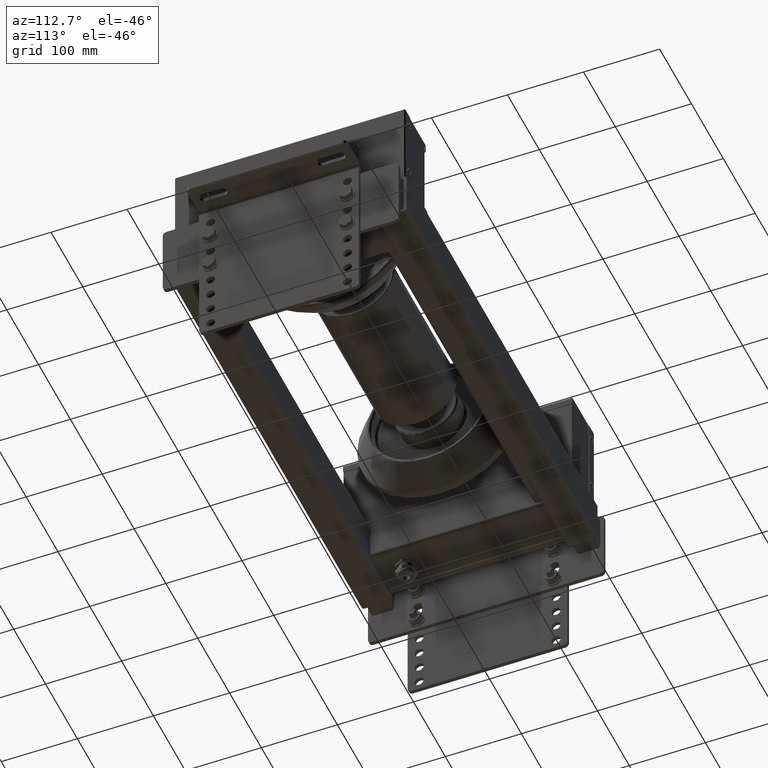
[diagram: clean part render]
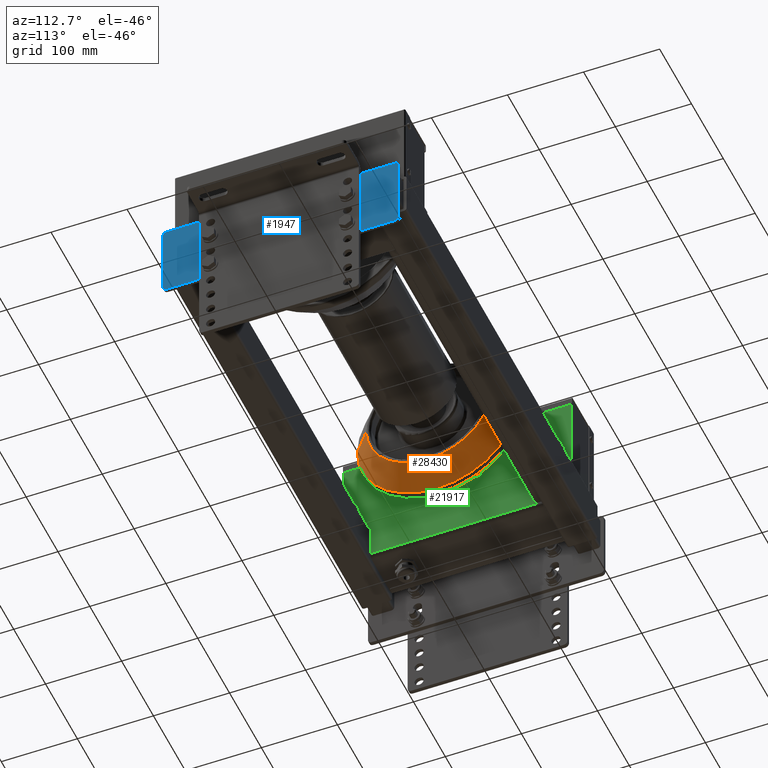
[diagram: same view with three faces highlighted in distinct colors, each labeled with its STEP entity id]
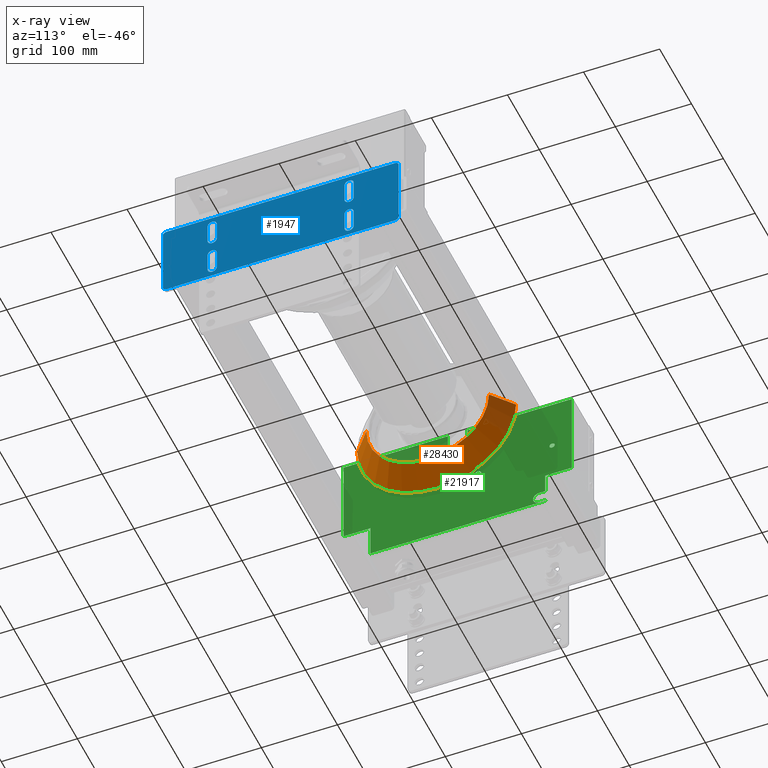
[diagram: x-ray of the same camera — body ghosted, the three highlighted faces saturated]
A machine part, auxiliary view with three faces highlighted in distinct colors.
The next image is the same camera in x-ray (body ghosted, the three faces saturated) — at least one of them is partly hidden behind the body in this view.
Their STEP definitions:

[orange] entity #28430 — the highlighted conical surface has half-angle 40 deg.
#28133=CARTESIAN_POINT('',(-19.285575219373122,-80.599473569927952,-9.870589E-015));
#28134=VERTEX_POINT('',#28133);
#28142=CARTESIAN_POINT('',(-19.285575219373115,-9.870589E-015,80.599473569927952));
#28143=VERTEX_POINT('',#28142);
#28144=CARTESIAN_POINT('',(-19.285575219373118,0.0,0.0));
#28145=DIRECTION('',(-1.0,0.0,0.0));
#28146=DIRECTION('',(0.0,-1.0,0.0));
#28147=AXIS2_PLACEMENT_3D('',#28144,#28145,#28146);
#28148=CIRCLE('',#28147,80.599473569927952);
#28149=EDGE_CURVE('',#28134,#28143,#28148,.T.);
#28228=CARTESIAN_POINT('',(9.096796376304386,104.415111107797440,0.0));
#28229=VERTEX_POINT('',#28228);
#28230=CARTESIAN_POINT('',(-19.285575219373118,80.599473569927952,0.0));
#28231=VERTEX_POINT('',#28230);
#28232=CARTESIAN_POINT('',(9.096796376304386,104.415111107797440,0.0));
#28233=DIRECTION('',(-0.766044443118978,-0.642787609686539,0.0));
#28234=VECTOR('',#28233,37.050554769534827);
#28235=LINE('',#28232,#28234);
#28236=EDGE_CURVE('',#28229,#28231,#28235,.T.);
#28247=CARTESIAN_POINT('',(9.096796376304390,-104.415111107797440,-1.278716E-014));
#28248=VERTEX_POINT('',#28247);
#28256=CARTESIAN_POINT('',(9.096796376304390,-104.415111107797440,-1.278716E-014));
#28257=DIRECTION('',(-0.766044443118978,0.642787609686539,7.871878E-017));
#28258=VECTOR('',#28257,37.050554769534827);
#28259=LINE('',#28256,#28258);
#28260=EDGE_CURVE('',#28248,#28134,#28259,.T.);
#28345=CARTESIAN_POINT('',(9.096796376304386,-1.278716E-014,104.415111107797440));
#28346=VERTEX_POINT('',#28345);
#28354=CARTESIAN_POINT('',(9.096796376304386,0.0,0.0));
#28355=DIRECTION('',(1.0,0.0,0.0));
#28356=DIRECTION('',(0.0,-1.0,0.0));
#28357=AXIS2_PLACEMENT_3D('',#28354,#28355,#28356);
#28358=CIRCLE('',#28357,104.415111107797440);
#28359=EDGE_CURVE('',#28346,#28248,#28358,.T.);
#28372=CARTESIAN_POINT('',(9.096796376304386,0.0,0.0));
#28373=DIRECTION('',(1.0,0.0,0.0));
#28374=DIRECTION('',(0.0,-1.0,0.0));
#28375=AXIS2_PLACEMENT_3D('',#28372,#28373,#28374);
#28376=CIRCLE('',#28375,104.415111107797440);
#28377=EDGE_CURVE('',#28229,#28346,#28376,.T.);
#28411=CARTESIAN_POINT('',(-5.103080092572398,0.0,0.0));
#28412=DIRECTION('',(1.0,0.0,0.0));
#28413=DIRECTION('',(0.0,1.0,0.0));
#28414=AXIS2_PLACEMENT_3D('',#28411,#28412,#28413);
#28415=CONICAL_SURFACE('',#28414,92.500000000000000,39.999999999999993);
#28416=ORIENTED_EDGE('',*,*,#28236,.T.);
#28417=CARTESIAN_POINT('',(-19.285575219373118,0.0,0.0));
#28418=DIRECTION('',(-1.0,0.0,0.0));
#28419=DIRECTION('',(0.0,-1.0,0.0));
#28420=AXIS2_PLACEMENT_3D('',#28417,#28418,#28419);
#28421=CIRCLE('',#28420,80.599473569927952);
#28422=EDGE_CURVE('',#28143,#28231,#28421,.T.);
#28423=ORIENTED_EDGE('',*,*,#28422,.F.);
#28424=ORIENTED_EDGE('',*,*,#28149,.F.);
#28425=ORIENTED_EDGE('',*,*,#28260,.F.);
#28426=ORIENTED_EDGE('',*,*,#28359,.F.);
#28427=ORIENTED_EDGE('',*,*,#28377,.F.);
#28428=EDGE_LOOP('',(#28416,#28423,#28424,#28425,#28426,#28427));
#28429=FACE_OUTER_BOUND('',#28428,.T.);
#28430=ADVANCED_FACE('',(#28429),#28415,.T.);

[blue] entity #1947 — the highlighted planar face has unit normal (1, -0, -0).
#1677=CARTESIAN_POINT('',(150.0,49.999999999999915,2.500000000000000));
#1678=VERTEX_POINT('',#1677);
#1679=CARTESIAN_POINT('',(155.0,45.0,2.500000000000000));
#1680=VERTEX_POINT('',#1679);
#1681=CARTESIAN_POINT('',(150.0,45.0,2.500000000000000));
#1682=DIRECTION('',(0.0,0.0,-1.000000000000000));
#1683=DIRECTION('',(0.707106781186547,0.707106781186547,0.0));
#1684=AXIS2_PLACEMENT_3D('',#1681,#1682,#1683);
#1685=CIRCLE('',#1684,4.999999999999999);
#1686=EDGE_CURVE('',#1678,#1680,#1685,.T.);
#1720=CARTESIAN_POINT('',(155.0,-44.999999999999886,2.500000000000000));
#1721=VERTEX_POINT('',#1720);
#1722=CARTESIAN_POINT('',(155.0,45.0,2.500000000000000));
#1723=DIRECTION('',(0.0,-1.0,0.0));
#1724=VECTOR('',#1723,89.999999999999886);
#1725=LINE('',#1722,#1724);
#1726=EDGE_CURVE('',#1680,#1721,#1725,.T.);
#1745=CARTESIAN_POINT('',(-2.273737E-013,0.0,2.500000000000000));
#1746=DIRECTION('',(0.0,0.0,1.0));
#1747=DIRECTION('',(1.0,0.0,0.0));
#1748=AXIS2_PLACEMENT_3D('',#1745,#1746,#1747);
#1749=PLANE('',#1748);
#1750=ORIENTED_EDGE('',*,*,#1686,.F.);
#1751=CARTESIAN_POINT('',(-150.000000000000060,49.999999999999858,2.500000000000000));
#1752=VERTEX_POINT('',#1751);
#1753=CARTESIAN_POINT('',(-150.000000000000060,49.999999999999858,2.500000000000000));
#1754=DIRECTION('',(1.0,0.0,0.0));
#1755=VECTOR('',#1754,300.000000000000060);
#1756=LINE('',#1753,#1755);
#1757=EDGE_CURVE('',#1752,#1678,#1756,.T.);
#1758=ORIENTED_EDGE('',*,*,#1757,.F.);
#1759=CARTESIAN_POINT('',(-155.000000000000030,44.999999999999943,2.500000000000000));
#1760=VERTEX_POINT('',#1759);
#1761=CARTESIAN_POINT('',(-150.000000000000060,44.999999999999943,2.500000000000000));
#1762=DIRECTION('',(0.0,0.0,-1.000000000000000));
#1763=DIRECTION('',(-0.707106781186547,0.707106781186547,0.0));
#1764=AXIS2_PLACEMENT_3D('',#1761,#1762,#1763);
#1765=CIRCLE('',#1764,4.999999999999999);
#1766=EDGE_CURVE('',#1760,#1752,#1765,.T.);
#1767=ORIENTED_EDGE('',*,*,#1766,.F.);
#1768=CARTESIAN_POINT('',(-154.999999999999970,-44.999999999999886,2.500000000000000));
#1769=VERTEX_POINT('',#1768);
#1770=CARTESIAN_POINT('',(-154.999999999999970,-44.999999999999886,2.500000000000000));
#1771=DIRECTION('',(0.0,1.0,0.0));
#1772=VECTOR('',#1771,89.999999999999829);
#1773=LINE('',#1770,#1772);
#1774=EDGE_CURVE('',#1769,#1760,#1773,.T.);
#1775=ORIENTED_EDGE('',*,*,#1774,.F.);
#1776=CARTESIAN_POINT('',(-150.0,-49.999999999999886,2.500000000000000));
#1777=VERTEX_POINT('',#1776);
#1778=CARTESIAN_POINT('',(-150.0,-44.999999999999886,2.500000000000000));
#1779=DIRECTION('',(0.0,0.0,-1.000000000000000));
#1780=DIRECTION('',(-0.707106781186547,-0.707106781186547,0.0));
#1781=AXIS2_PLACEMENT_3D('',#1778,#1779,#1780);
#1782=CIRCLE('',#1781,4.999999999999999);
#1783=EDGE_CURVE('',#1777,#1769,#1782,.T.);
#1784=ORIENTED_EDGE('',*,*,#1783,.F.);
#1785=CARTESIAN_POINT('',(150.0,-49.999999999999886,2.500000000000000));
#1786=VERTEX_POINT('',#1785);
#1787=CARTESIAN_POINT('',(150.0,-49.999999999999886,2.500000000000000));
#1788=DIRECTION('',(-1.0,0.0,0.0));
#1789=VECTOR('',#1788,300.0);
#1790=LINE('',#1787,#1789);
#1791=EDGE_CURVE('',#1786,#1777,#1790,.T.);
#1792=ORIENTED_EDGE('',*,*,#1791,.F.);
#1793=CARTESIAN_POINT('',(150.0,-44.999999999999886,2.500000000000000));
#1794=DIRECTION('',(0.0,0.0,-1.000000000000000));
#1795=DIRECTION('',(0.707106781186547,-0.707106781186547,0.0));
#1796=AXIS2_PLACEMENT_3D('',#1793,#1794,#1795);
#1797=CIRCLE('',#1796,4.999999999999999);
#1798=EDGE_CURVE('',#1721,#1786,#1797,.T.);
#1799=ORIENTED_EDGE('',*,*,#1798,.F.);
#1800=ORIENTED_EDGE('',*,*,#1726,.F.);
#1801=EDGE_LOOP('',(#1750,#1758,#1767,#1775,#1784,#1792,#1799,#1800));
#1802=FACE_OUTER_BOUND('',#1801,.T.);
#1803=CARTESIAN_POINT('',(-84.0,12.499999999999943,2.500000000000000));
#1804=VERTEX_POINT('',#1803);
#1805=CARTESIAN_POINT('',(-84.0,37.500000000000057,2.500000000000000));
#1806=VERTEX_POINT('',#1805);
#1807=CARTESIAN_POINT('',(-84.0,12.499999999999943,2.500000000000000));
#1808=DIRECTION('',(0.0,1.0,0.0));
#1809=VECTOR('',#1808,25.000000000000114);
#1810=LINE('',#1807,#1809);
#1811=EDGE_CURVE('',#1804,#1806,#1810,.T.);
#1812=ORIENTED_EDGE('',*,*,#1811,.F.);
#1813=CARTESIAN_POINT('',(-96.0,12.499999999999943,2.500000000000000));
#1814=VERTEX_POINT('',#1813);
#1815=CARTESIAN_POINT('',(-90.0,12.499999999999943,2.500000000000000));
#1816=DIRECTION('',(0.0,0.0,1.0));
#1817=DIRECTION('',(1.0,0.0,0.0));
#1818=AXIS2_PLACEMENT_3D('',#1815,#1816,#1817);
#1819=CIRCLE('',#1818,6.0);
#1820=EDGE_CURVE('',#1814,#1804,#1819,.T.);
#1821=ORIENTED_EDGE('',*,*,#1820,.F.);
#1822=CARTESIAN_POINT('',(-95.999999999999886,37.500000000000057,2.500000000000000));
#1823=VERTEX_POINT('',#1822);
#1824=CARTESIAN_POINT('',(-95.999999999999886,37.500000000000057,2.500000000000000));
#1825=DIRECTION('',(0.0,-1.0,0.0));
#1826=VECTOR('',#1825,25.000000000000114);
#1827=LINE('',#1824,#1826);
#1828=EDGE_CURVE('',#1823,#1814,#1827,.T.);
#1829=ORIENTED_EDGE('',*,*,#1828,.F.);
#1830=CARTESIAN_POINT('',(-90.0,37.500000000000057,2.500000000000000));
#1831=DIRECTION('',(0.0,0.0,1.0));
#1832=DIRECTION('',(1.0,0.0,0.0));
#1833=AXIS2_PLACEMENT_3D('',#1830,#1831,#1832);
#1834=CIRCLE('',#1833,6.0);
#1835=EDGE_CURVE('',#1806,#1823,#1834,.T.);
#1836=ORIENTED_EDGE('',*,*,#1835,.F.);
#1837=EDGE_LOOP('',(#1812,#1821,#1829,#1836));
#1838=FACE_BOUND('',#1837,.T.);
#1839=CARTESIAN_POINT('',(96.000000000000114,12.500000000000000,2.500000000000000));
#1840=VERTEX_POINT('',#1839);
#1841=CARTESIAN_POINT('',(96.000000000000114,37.499999999999943,2.500000000000000));
#1842=VERTEX_POINT('',#1841);
#1843=CARTESIAN_POINT('',(96.000000000000114,12.500000000000000,2.500000000000000));
#1844=DIRECTION('',(0.0,1.0,0.0));
#1845=VECTOR('',#1844,24.999999999999943);
#1846=LINE('',#1843,#1845);
#1847=EDGE_CURVE('',#1840,#1842,#1846,.T.);
#1848=ORIENTED_EDGE('',*,*,#1847,.F.);
#1849=CARTESIAN_POINT('',(84.000000000000114,12.500000000000000,2.500000000000000));
#1850=VERTEX_POINT('',#1849);
#1851=CARTESIAN_POINT('',(89.999999999999773,12.499999999999943,2.500000000000000));
#1852=DIRECTION('',(0.0,0.0,1.0));
#1853=DIRECTION('',(1.0,0.0,0.0));
#1854=AXIS2_PLACEMENT_3D('',#1851,#1852,#1853);
#1855=CIRCLE('',#1854,6.0);
#1856=EDGE_CURVE('',#1850,#1840,#1855,.T.);
#1857=ORIENTED_EDGE('',*,*,#1856,.F.);
#1858=CARTESIAN_POINT('',(84.000000000000114,37.499999999999943,2.500000000000000));
#1859=VERTEX_POINT('',#1858);
#1860=CARTESIAN_POINT('',(84.000000000000114,37.499999999999943,2.500000000000000));
#1861=DIRECTION('',(0.0,-1.0,0.0));
#1862=VECTOR('',#1861,24.999999999999943);
#1863=LINE('',#1860,#1862);
#1864=EDGE_CURVE('',#1859,#1850,#1863,.T.);
#1865=ORIENTED_EDGE('',*,*,#1864,.F.);
#1866=CARTESIAN_POINT('',(89.999999999999773,37.500000000000057,2.500000000000000));
#1867=DIRECTION('',(0.0,0.0,1.0));
#1868=DIRECTION('',(1.0,0.0,0.0));
#1869=AXIS2_PLACEMENT_3D('',#1866,#1867,#1868);
#1870=CIRCLE('',#1869,6.0);
#1871=EDGE_CURVE('',#1842,#1859,#1870,.T.);
#1872=ORIENTED_EDGE('',*,*,#1871,.F.);
#1873=EDGE_LOOP('',(#1848,#1857,#1865,#1872));
#1874=FACE_BOUND('',#1873,.T.);
#1875=CARTESIAN_POINT('',(96.000000000000114,-37.500000000000000,2.500000000000000));
#1876=VERTEX_POINT('',#1875);
#1877=CARTESIAN_POINT('',(96.000000000000114,-12.499999999999886,2.500000000000000));
#1878=VERTEX_POINT('',#1877);
#1879=CARTESIAN_POINT('',(96.000000000000114,-37.500000000000000,2.500000000000000));
#1880=DIRECTION('',(0.0,1.0,0.0));
#1881=VECTOR('',#1880,25.000000000000114);
#1882=LINE('',#1879,#1881);
#1883=EDGE_CURVE('',#1876,#1878,#1882,.T.);
#1884=ORIENTED_EDGE('',*,*,#1883,.F.);
#1885=CARTESIAN_POINT('',(83.999999999999886,-37.500000000000000,2.500000000000000));
#1886=VERTEX_POINT('',#1885);
#1887=CARTESIAN_POINT('',(90.0,-37.500000000000000,2.500000000000000));
#1888=DIRECTION('',(0.0,0.0,1.0));
#1889=DIRECTION('',(1.0,0.0,0.0));
#1890=AXIS2_PLACEMENT_3D('',#1887,#1888,#1889);
#1891=CIRCLE('',#1890,6.0);
#1892=EDGE_CURVE('',#1886,#1876,#1891,.T.);
#1893=ORIENTED_EDGE('',*,*,#1892,.F.);
#1894=CARTESIAN_POINT('',(84.0,-12.499999999999886,2.500000000000000));
#1895=VERTEX_POINT('',#1894);
#1896=CARTESIAN_POINT('',(84.0,-12.499999999999886,2.500000000000000));
#1897=DIRECTION('',(0.0,-1.0,0.0));
#1898=VECTOR('',#1897,25.000000000000114);
#1899=LINE('',#1896,#1898);
#1900=EDGE_CURVE('',#1895,#1886,#1899,.T.);
#1901=ORIENTED_EDGE('',*,*,#1900,.F.);
#1902=CARTESIAN_POINT('',(90.0,-12.499999999999886,2.500000000000000));
#1903=DIRECTION('',(0.0,0.0,1.0));
#1904=DIRECTION('',(1.0,0.0,0.0));
#1905=AXIS2_PLACEMENT_3D('',#1902,#1903,#1904);
#1906=CIRCLE('',#1905,6.0);
#1907=EDGE_CURVE('',#1878,#1895,#1906,.T.);
#1908=ORIENTED_EDGE('',*,*,#1907,.F.);
#1909=EDGE_LOOP('',(#1884,#1893,#1901,#1908));
#1910=FACE_BOUND('',#1909,.T.);
#1911=CARTESIAN_POINT('',(-84.0,-37.500000000000000,2.500000000000000));
#1912=VERTEX_POINT('',#1911);
#1913=CARTESIAN_POINT('',(-84.0,-12.500000000000057,2.500000000000000));
#1914=VERTEX_POINT('',#1913);
#1915=CARTESIAN_POINT('',(-84.0,-37.500000000000000,2.500000000000000));
#1916=DIRECTION('',(0.0,1.0,0.0));
#1917=VECTOR('',#1916,24.999999999999943);
#1918=LINE('',#1915,#1917);
#1919=EDGE_CURVE('',#1912,#1914,#1918,.T.);
#1920=ORIENTED_EDGE('',*,*,#1919,.F.);
#1921=CARTESIAN_POINT('',(-96.0,-37.500000000000000,2.500000000000000));
#1922=VERTEX_POINT('',#1921);
#1923=CARTESIAN_POINT('',(-90.0,-37.500000000000057,2.500000000000000));
#1924=DIRECTION('',(0.0,0.0,1.0));
#1925=DIRECTION('',(1.0,0.0,0.0));
#1926=AXIS2_PLACEMENT_3D('',#1923,#1924,#1925);
#1927=CIRCLE('',#1926,6.0);
#1928=EDGE_CURVE('',#1922,#1912,#1927,.T.);
#1929=ORIENTED_EDGE('',*,*,#1928,.F.);
#1930=CARTESIAN_POINT('',(-96.0,-12.500000000000057,2.500000000000000));
#1931=VERTEX_POINT('',#1930);
#1932=CARTESIAN_POINT('',(-96.0,-12.500000000000057,2.500000000000000));
#1933=DIRECTION('',(0.0,-1.0,0.0));
#1934=VECTOR('',#1933,24.999999999999943);
#1935=LINE('',#1932,#1934);
#1936=EDGE_CURVE('',#1931,#1922,#1935,.T.);
#1937=ORIENTED_EDGE('',*,*,#1936,.F.);
#1938=CARTESIAN_POINT('',(-90.0,-12.499999999999943,2.500000000000000));
#1939=DIRECTION('',(0.0,0.0,1.0));
#1940=DIRECTION('',(1.0,0.0,0.0));
#1941=AXIS2_PLACEMENT_3D('',#1938,#1939,#1940);
#1942=CIRCLE('',#1941,6.0);
#1943=EDGE_CURVE('',#1914,#1931,#1942,.T.);
#1944=ORIENTED_EDGE('',*,*,#1943,.F.);
#1945=EDGE_LOOP('',(#1920,#1929,#1937,#1944));
#1946=FACE_BOUND('',#1945,.T.);
#1947=ADVANCED_FACE('',(#1802,#1838,#1874,#1910,#1946),#1749,.T.);

[green] entity #21917 — the highlighted planar face has unit normal (-1, -0, 0).
#20600=CARTESIAN_POINT('',(-22.141504294496144,3.483495705504765,-1.500000000000000));
#20601=VERTEX_POINT('',#20600);
#20617=CARTESIAN_POINT('',(-30.891504294496144,3.483495705504765,-1.500000000000000));
#20618=VERTEX_POINT('',#20617);
#20625=CARTESIAN_POINT('',(-26.516504294496144,3.483495705504765,-1.500000000000000));
#20626=DIRECTION('',(0.0,0.0,-1.0));
#20627=DIRECTION('',(1.0,0.0,0.0));
#20628=AXIS2_PLACEMENT_3D('',#20625,#20626,#20627);
#20629=CIRCLE('',#20628,4.375000000000000);
#20630=EDGE_CURVE('',#20618,#20601,#20629,.T.);
#20642=CARTESIAN_POINT('',(30.891504294494780,3.483495705504765,-1.500000000000000));
#20643=VERTEX_POINT('',#20642);
#20659=CARTESIAN_POINT('',(22.141504294494780,3.483495705504765,-1.500000000000000));
#20660=VERTEX_POINT('',#20659);
#20667=CARTESIAN_POINT('',(26.516504294494780,3.483495705504765,-1.500000000000000));
#20668=DIRECTION('',(0.0,0.0,-1.0));
#20669=DIRECTION('',(1.0,0.0,0.0));
#20670=AXIS2_PLACEMENT_3D('',#20667,#20668,#20669);
#20671=CIRCLE('',#20670,4.375000000000000);
#20672=EDGE_CURVE('',#20660,#20643,#20671,.T.);
#20684=CARTESIAN_POINT('',(30.891504294494780,56.516504294495917,-1.500000000000000));
#20685=VERTEX_POINT('',#20684);
#20701=CARTESIAN_POINT('',(22.141504294494780,56.516504294495917,-1.500000000000000));
#20702=VERTEX_POINT('',#20701);
#20709=CARTESIAN_POINT('',(26.516504294494780,56.516504294495917,-1.500000000000000));
#20710=DIRECTION('',(0.0,0.0,-1.0));
#20711=DIRECTION('',(1.0,0.0,0.0));
#20712=AXIS2_PLACEMENT_3D('',#20709,#20710,#20711);
#20713=CIRCLE('',#20712,4.375000000000000);
#20714=EDGE_CURVE('',#20702,#20685,#20713,.T.);
#20726=CARTESIAN_POINT('',(-22.141504294496372,56.516504294495917,-1.500000000000000));
#20727=VERTEX_POINT('',#20726);
#20743=CARTESIAN_POINT('',(-30.891504294496372,56.516504294495917,-1.500000000000000));
#20744=VERTEX_POINT('',#20743);
#20751=CARTESIAN_POINT('',(-26.516504294496372,56.516504294495917,-1.500000000000000));
#20752=DIRECTION('',(0.0,0.0,-1.0));
#20753=DIRECTION('',(1.0,0.0,0.0));
#20754=AXIS2_PLACEMENT_3D('',#20751,#20752,#20753);
#20755=CIRCLE('',#20754,4.375000000000000);
#20756=EDGE_CURVE('',#20744,#20727,#20755,.T.);
#20850=CARTESIAN_POINT('',(-57.550000000000907,66.000000000000227,-1.500000000000000));
#20851=VERTEX_POINT('',#20850);
#20860=CARTESIAN_POINT('',(-64.450000000000912,66.000000000000227,-1.500000000000000));
#20861=VERTEX_POINT('',#20860);
#20862=CARTESIAN_POINT('',(-61.000000000000909,66.000000000000227,-1.500000000000000));
#20863=DIRECTION('',(0.0,0.0,1.0));
#20864=DIRECTION('',(1.0,0.0,0.0));
#20865=AXIS2_PLACEMENT_3D('',#20862,#20863,#20864);
#20866=CIRCLE('',#20865,3.450000000000000);
#20867=EDGE_CURVE('',#20861,#20851,#20866,.T.);
#20892=CARTESIAN_POINT('',(-120.550000000000910,14.000000000000227,-1.500000000000000));
#20893=VERTEX_POINT('',#20892);
#20902=CARTESIAN_POINT('',(-127.450000000000910,14.000000000000227,-1.500000000000000));
#20903=VERTEX_POINT('',#20902);
#20904=CARTESIAN_POINT('',(-124.000000000000910,14.000000000000227,-1.500000000000000));
#20905=DIRECTION('',(0.0,0.0,1.0));
#20906=DIRECTION('',(1.0,0.0,0.0));
#20907=AXIS2_PLACEMENT_3D('',#20904,#20905,#20906);
#20908=CIRCLE('',#20907,3.450000000000000);
#20909=EDGE_CURVE('',#20903,#20893,#20908,.T.);
#21104=CARTESIAN_POINT('',(-115.000000000001360,-78.999999999999773,-1.500000000000000));
#21105=VERTEX_POINT('',#21104);
#21113=CARTESIAN_POINT('',(115.0,-78.999999999999773,-1.500000000000000));
#21114=VERTEX_POINT('',#21113);
#21115=CARTESIAN_POINT('',(-115.000000000001360,-78.999999999999773,-1.500000000000000));
#21116=DIRECTION('',(1.0,0.0,0.0));
#21117=VECTOR('',#21116,230.000000000001360);
#21118=LINE('',#21115,#21117);
#21119=EDGE_CURVE('',#21105,#21114,#21118,.T.);
#21186=CARTESIAN_POINT('',(114.999999999999090,-34.999999999999773,-1.500000000000000));
#21187=VERTEX_POINT('',#21186);
#21188=CARTESIAN_POINT('',(114.999999999999090,-34.999999999999773,-1.500000000000000));
#21189=DIRECTION('',(0.0,-1.0,0.0));
#21190=VECTOR('',#21189,44.0);
#21191=LINE('',#21188,#21190);
#21192=EDGE_CURVE('',#21187,#21114,#21191,.T.);
#21401=CARTESIAN_POINT('',(-124.000000000000910,14.000000000000227,-1.500000000000000));
#21402=DIRECTION('',(0.0,0.0,1.0));
#21403=DIRECTION('',(1.0,0.0,0.0));
#21404=AXIS2_PLACEMENT_3D('',#21401,#21402,#21403);
#21405=CIRCLE('',#21404,3.450000000000000);
#21406=EDGE_CURVE('',#20893,#20903,#21405,.T.);
#21425=CARTESIAN_POINT('',(-61.000000000000909,66.000000000000227,-1.500000000000000));
#21426=DIRECTION('',(0.0,0.0,1.0));
#21427=DIRECTION('',(1.0,0.0,0.0));
#21428=AXIS2_PLACEMENT_3D('',#21425,#21426,#21427);
#21429=CIRCLE('',#21428,3.450000000000000);
#21430=EDGE_CURVE('',#20851,#20861,#21429,.T.);
#21667=CARTESIAN_POINT('',(12.999999999999091,85.000000000000455,-1.500000000000000));
#21668=VERTEX_POINT('',#21667);
#21669=CARTESIAN_POINT('',(149.999999999999090,85.000000000000227,-1.500000000000000));
#21670=VERTEX_POINT('',#21669);
#21671=CARTESIAN_POINT('',(12.999999999999091,85.000000000000455,-1.500000000000000));
#21672=DIRECTION('',(1.0,0.0,0.0));
#21673=VECTOR('',#21672,137.0);
#21674=LINE('',#21671,#21673);
#21675=EDGE_CURVE('',#21668,#21670,#21674,.T.);
#21714=CARTESIAN_POINT('',(149.999999999999090,-34.999999999999773,-1.500000000000000));
#21715=VERTEX_POINT('',#21714);
#21716=CARTESIAN_POINT('',(149.999999999999090,-34.999999999999773,-1.500000000000000));
#21717=DIRECTION('',(-1.0,0.0,0.0));
#21718=VECTOR('',#21717,35.0);
#21719=LINE('',#21716,#21718);
#21720=EDGE_CURVE('',#21715,#21187,#21719,.T.);
#21746=CARTESIAN_POINT('',(-13.000000000000682,85.000000000000227,-1.500000000000000));
#21747=VERTEX_POINT('',#21746);
#21754=CARTESIAN_POINT('',(-150.000000000000910,85.000000000000227,-1.500000000000000));
#21755=VERTEX_POINT('',#21754);
#21756=CARTESIAN_POINT('',(-150.000000000000910,85.000000000000227,-1.500000000000000));
#21757=DIRECTION('',(1.0,0.0,0.0));
#21758=VECTOR('',#21757,137.000000000000230);
#21759=LINE('',#21756,#21758);
#21760=EDGE_CURVE('',#21755,#21747,#21759,.T.);
#21773=CARTESIAN_POINT('',(-1.774273069271612,-15.615440189898896,-1.500000000000000));
#21774=DIRECTION('',(0.0,0.0,1.0));
#21775=DIRECTION('',(1.0,0.0,0.0));
#21776=AXIS2_PLACEMENT_3D('',#21773,#21774,#21775);
#21777=PLANE('',#21776);
#21778=ORIENTED_EDGE('',*,*,#21119,.F.);
#21779=CARTESIAN_POINT('',(-115.000000000000910,-77.999999999999773,-1.500000000000000));
#21780=VERTEX_POINT('',#21779);
#21781=CARTESIAN_POINT('',(-115.000000000001360,-78.999999999999773,-1.500000000000000));
#21782=DIRECTION('',(4.547474E-013,1.0,0.0));
#21783=VECTOR('',#21782,1.0);
#21784=LINE('',#21781,#21783);
#21785=EDGE_CURVE('',#21105,#21780,#21784,.T.);
#21786=ORIENTED_EDGE('',*,*,#21785,.T.);
#21787=CARTESIAN_POINT('',(-107.000000000000910,-77.999999999999773,-1.500000000000000));
#21788=VERTEX_POINT('',#21787);
#21789=CARTESIAN_POINT('',(-115.000000000000910,-77.999999999999773,-1.500000000000000));
#21790=DIRECTION('',(1.0,0.0,0.0));
#21791=VECTOR('',#21790,8.0);
#21792=LINE('',#21789,#21791);
#21793=EDGE_CURVE('',#21780,#21788,#21792,.T.);
#21794=ORIENTED_EDGE('',*,*,#21793,.T.);
#21795=CARTESIAN_POINT('',(-107.000000000000910,-61.999999999999773,-1.500000000000000));
#21796=VERTEX_POINT('',#21795);
#21797=CARTESIAN_POINT('',(-107.000000000000910,-69.999999999999773,-1.500000000000000));
#21798=DIRECTION('',(0.0,0.0,1.0));
#21799=DIRECTION('',(1.0,0.0,0.0));
#21800=AXIS2_PLACEMENT_3D('',#21797,#21798,#21799);
#21801=CIRCLE('',#21800,8.0);
#21802=EDGE_CURVE('',#21788,#21796,#21801,.T.);
#21803=ORIENTED_EDGE('',*,*,#21802,.T.);
#21804=CARTESIAN_POINT('',(-115.000000000000910,-61.999999999999773,-1.500000000000000));
#21805=VERTEX_POINT('',#21804);
#21806=CARTESIAN_POINT('',(-107.000000000000910,-61.999999999999773,-1.500000000000000));
#21807=DIRECTION('',(-1.0,0.0,0.0));
#21808=VECTOR('',#21807,8.0);
#21809=LINE('',#21806,#21808);
#21810=EDGE_CURVE('',#21796,#21805,#21809,.T.);
#21811=ORIENTED_EDGE('',*,*,#21810,.T.);
#21812=CARTESIAN_POINT('',(-115.000000000000910,-34.999999999999773,-1.500000000000000));
#21813=VERTEX_POINT('',#21812);
#21814=CARTESIAN_POINT('',(-115.000000000000910,-61.999999999999773,-1.500000000000000));
#21815=DIRECTION('',(0.0,1.0,0.0));
#21816=VECTOR('',#21815,27.0);
#21817=LINE('',#21814,#21816);
#21818=EDGE_CURVE('',#21805,#21813,#21817,.T.);
#21819=ORIENTED_EDGE('',*,*,#21818,.T.);
#21820=CARTESIAN_POINT('',(-150.000000000000910,-34.999999999999773,-1.500000000000000));
#21821=VERTEX_POINT('',#21820);
#21822=CARTESIAN_POINT('',(-115.000000000000910,-34.999999999999773,-1.500000000000000));
#21823=DIRECTION('',(-1.0,0.0,0.0));
#21824=VECTOR('',#21823,35.0);
#21825=LINE('',#21822,#21824);
#21826=EDGE_CURVE('',#21813,#21821,#21825,.T.);
#21827=ORIENTED_EDGE('',*,*,#21826,.T.);
#21828=CARTESIAN_POINT('',(-150.000000000000910,-34.999999999999773,-1.500000000000000));
#21829=DIRECTION('',(0.0,1.0,0.0));
#21830=VECTOR('',#21829,120.0);
#21831=LINE('',#21828,#21830);
#21832=EDGE_CURVE('',#21821,#21755,#21831,.T.);
#21833=ORIENTED_EDGE('',*,*,#21832,.T.);
#21834=ORIENTED_EDGE('',*,*,#21760,.T.);
#21835=CARTESIAN_POINT('',(-13.000000000001137,57.590759322643180,-1.500000000000000));
#21836=VERTEX_POINT('',#21835);
#21837=CARTESIAN_POINT('',(-13.000000000000682,85.000000000000227,-1.500000000000000));
#21838=DIRECTION('',(0.0,-1.0,0.0));
#21839=VECTOR('',#21838,27.409240677357047);
#21840=LINE('',#21837,#21839);
#21841=EDGE_CURVE('',#21747,#21836,#21840,.T.);
#21842=ORIENTED_EDGE('',*,*,#21841,.T.);
#21843=CARTESIAN_POINT('',(12.999999999999091,57.590759322643180,-1.500000000000000));
#21844=VERTEX_POINT('',#21843);
#21845=CARTESIAN_POINT('',(1.818989E-012,29.999999999996817,-1.500000000000000));
#21846=DIRECTION('',(0.0,0.0,1.0));
#21847=DIRECTION('',(1.0,0.0,0.0));
#21848=AXIS2_PLACEMENT_3D('',#21845,#21846,#21847);
#21849=CIRCLE('',#21848,30.500000000000000);
#21850=EDGE_CURVE('',#21836,#21844,#21849,.T.);
#21851=ORIENTED_EDGE('',*,*,#21850,.T.);
#21852=CARTESIAN_POINT('',(12.999999999999091,57.590759322643180,-1.500000000000000));
#21853=DIRECTION('',(0.0,1.0,0.0));
#21854=VECTOR('',#21853,27.409240677357275);
#21855=LINE('',#21852,#21854);
#21856=EDGE_CURVE('',#21844,#21668,#21855,.T.);
#21857=ORIENTED_EDGE('',*,*,#21856,.T.);
#21858=ORIENTED_EDGE('',*,*,#21675,.T.);
#21859=CARTESIAN_POINT('',(149.999999999999090,85.000000000000227,-1.500000000000000));
#21860=DIRECTION('',(0.0,-1.0,0.0));
#21861=VECTOR('',#21860,120.0);
#21862=LINE('',#21859,#21861);
#21863=EDGE_CURVE('',#21670,#21715,#21862,.T.);
#21864=ORIENTED_EDGE('',*,*,#21863,.T.);
#21865=ORIENTED_EDGE('',*,*,#21720,.T.);
#21866=ORIENTED_EDGE('',*,*,#21192,.T.);
#21867=EDGE_LOOP('',(#21778,#21786,#21794,#21803,#21811,#21819,#21827,#21833,#21834,#21842,#21851,#21857,#21858,#21864,#21865,#21866));
#21868=FACE_OUTER_BOUND('',#21867,.T.);
#21869=ORIENTED_EDGE('',*,*,#21406,.T.);
#21870=ORIENTED_EDGE('',*,*,#20909,.T.);
#21871=EDGE_LOOP('',(#21869,#21870));
#21872=FACE_BOUND('',#21871,.T.);
#21873=ORIENTED_EDGE('',*,*,#21430,.T.);
#21874=ORIENTED_EDGE('',*,*,#20867,.T.);
#21875=EDGE_LOOP('',(#21873,#21874));
#21876=FACE_BOUND('',#21875,.T.);
#21877=CARTESIAN_POINT('',(-26.516504294496372,56.516504294495917,-1.500000000000000));
#21878=DIRECTION('',(0.0,0.0,-1.0));
#21879=DIRECTION('',(1.0,0.0,0.0));
#21880=AXIS2_PLACEMENT_3D('',#21877,#21878,#21879);
#21881=CIRCLE('',#21880,4.375000000000000);
#21882=EDGE_CURVE('',#20727,#20744,#21881,.T.);
#21883=ORIENTED_EDGE('',*,*,#21882,.F.);
#21884=ORIENTED_EDGE('',*,*,#20756,.F.);
#21885=EDGE_LOOP('',(#21883,#21884));
#21886=FACE_BOUND('',#21885,.T.);
#21887=CARTESIAN_POINT('',(26.516504294494780,56.516504294495917,-1.500000000000000));
#21888=DIRECTION('',(0.0,0.0,-1.0));
#21889=DIRECTION('',(1.0,0.0,0.0));
#21890=AXIS2_PLACEMENT_3D('',#21887,#21888,#21889);
#21891=CIRCLE('',#21890,4.375000000000000);
#21892=EDGE_CURVE('',#20685,#20702,#21891,.T.);
#21893=ORIENTED_EDGE('',*,*,#21892,.F.);
#21894=ORIENTED_EDGE('',*,*,#20714,.F.);
#21895=EDGE_LOOP('',(#21893,#21894));
#21896=FACE_BOUND('',#21895,.T.);
#21897=CARTESIAN_POINT('',(26.516504294494780,3.483495705504765,-1.500000000000000));
#21898=DIRECTION('',(0.0,0.0,-1.0));
#21899=DIRECTION('',(1.0,0.0,0.0));
#21900=AXIS2_PLACEMENT_3D('',#21897,#21898,#21899);
#21901=CIRCLE('',#21900,4.375000000000000);
#21902=EDGE_CURVE('',#20643,#20660,#21901,.T.);
#21903=ORIENTED_EDGE('',*,*,#21902,.F.);
#21904=ORIENTED_EDGE('',*,*,#20672,.F.);
#21905=EDGE_LOOP('',(#21903,#21904));
#21906=FACE_BOUND('',#21905,.T.);
#21907=CARTESIAN_POINT('',(-26.516504294496144,3.483495705504765,-1.500000000000000));
#21908=DIRECTION('',(0.0,0.0,-1.0));
#21909=DIRECTION('',(1.0,0.0,0.0));
#21910=AXIS2_PLACEMENT_3D('',#21907,#21908,#21909);
#21911=CIRCLE('',#21910,4.375000000000000);
#21912=EDGE_CURVE('',#20601,#20618,#21911,.T.);
#21913=ORIENTED_EDGE('',*,*,#21912,.F.);
#21914=ORIENTED_EDGE('',*,*,#20630,.F.);
#21915=EDGE_LOOP('',(#21913,#21914));
#21916=FACE_BOUND('',#21915,.T.);
#21917=ADVANCED_FACE('',(#21868,#21872,#21876,#21886,#21896,#21906,#21916),#21777,.F.);